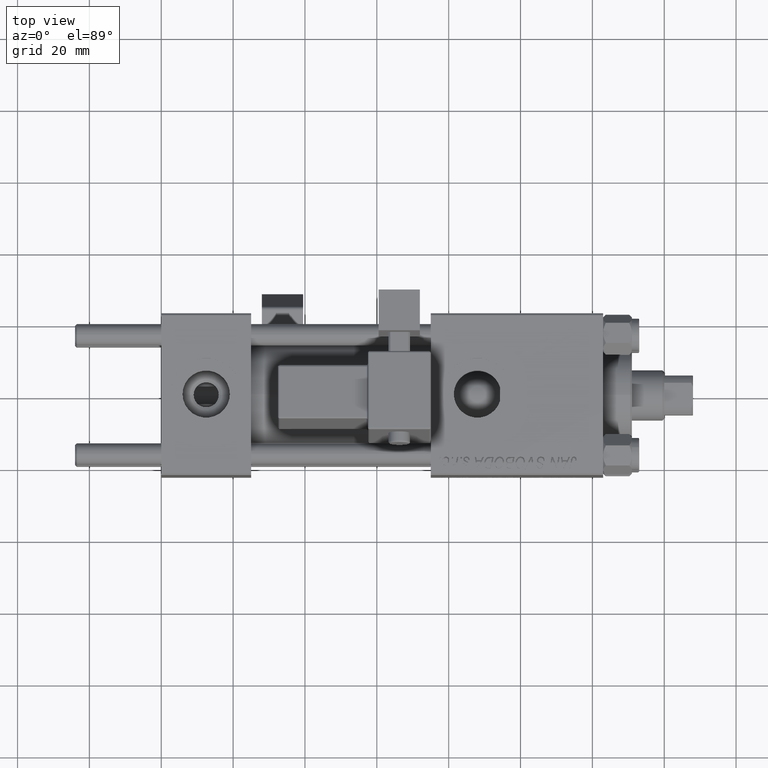
[diagram: clean part render]
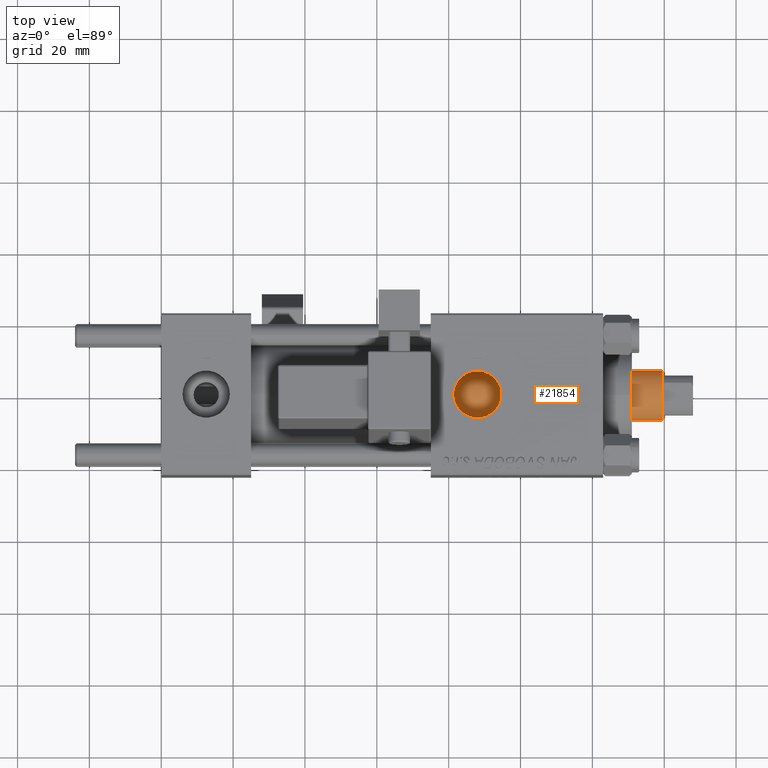
[diagram: same view with one face highlighted and labeled with its STEP entity id]
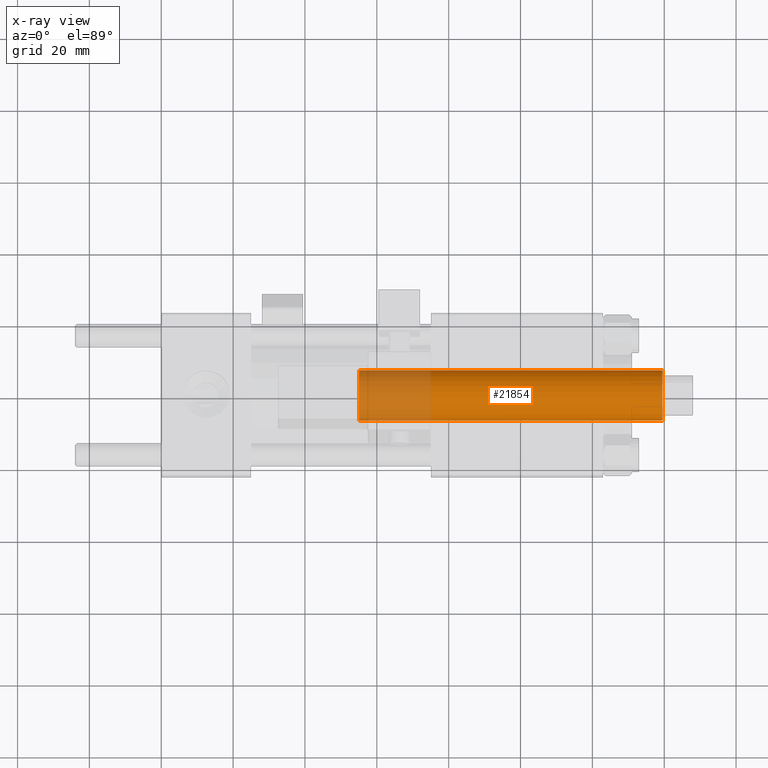
[diagram: x-ray of the same camera — body ghosted, the highlighted face saturated]
A machine part, top view. The second image highlights one B-rep face of the part: STEP entity #21854.
The next image is the same camera in x-ray: the body ghosted, the highlighted face saturated — about 25% of this face is hidden behind the body in this view.
In plain terms, the highlighted cylindrical surface (edge-blend (fillet) strip) has radius 7 mm, axis along (-1, 0, 0).
Its self-contained STEP definition (entity closure, byte-faithful):
#433 = CIRCLE ( 'NONE', #41806, 7.000000000000000000 ) ;
#2949 = DIRECTION ( 'NONE',  ( 0.000000000000000000, 0.000000000000000000, 1.000000000000000000 ) ) ;
#3571 = CARTESIAN_POINT ( 'NONE',  ( 0.000000000000000000, 0.000000000000000000, 30.00000000000000000 ) ) ;
#4063 = EDGE_CURVE ( 'NONE', #8750, #19957, #433, .T. ) ;
#4565 = CARTESIAN_POINT ( 'NONE',  ( 7.000000000000000000, 8.572527594031473190E-16, 114.4999999999999858 ) ) ;
#5091 = DIRECTION ( 'NONE',  ( -0.000000000000000000, -0.000000000000000000, -1.000000000000000000 ) ) ;
#5949 = CYLINDRICAL_SURFACE ( 'NONE', #30717, 7.000000000000000000 ) ;
#6980 = ORIENTED_EDGE ( 'NONE', *, *, #30055, .F. ) ;
#7354 = CARTESIAN_POINT ( 'NONE',  ( 0.000000000000000000, 0.000000000000000000, 114.4999999999999858 ) ) ;
#8230 = VECTOR ( 'NONE', #15314, 1000.000000000000000 ) ;
#8644 = EDGE_CURVE ( 'NONE', #19957, #36635, #25724, .T. ) ;
#8750 = VERTEX_POINT ( 'NONE', #4565 ) ;
#13882 = AXIS2_PLACEMENT_3D ( 'NONE', #3571, #2949, #39700 ) ;
#15314 = DIRECTION ( 'NONE',  ( -0.000000000000000000, -0.000000000000000000, -1.000000000000000000 ) ) ;
#17400 = ORIENTED_EDGE ( 'NONE', *, *, #8644, .T. ) ;
#18939 = EDGE_CURVE ( 'NONE', #36635, #29887, #34940, .T. ) ;
#19025 = LINE ( 'NONE', #51264, #8230 ) ;
#19957 = VERTEX_POINT ( 'NONE', #42413 ) ;
#21854 = ADVANCED_FACE ( 'NONE', ( #22617 ), #5949, .T. ) ;
#22617 = FACE_OUTER_BOUND ( 'NONE', #42969, .T. ) ;
#23768 = DIRECTION ( 'NONE',  ( 0.000000000000000000, 0.000000000000000000, -1.000000000000000000 ) ) ;
#25724 = LINE ( 'NONE', #36554, #44529 ) ;
#29887 = VERTEX_POINT ( 'NONE', #45726 ) ;
#30055 = EDGE_CURVE ( 'NONE', #8750, #29887, #19025, .T. ) ;
#30717 = AXIS2_PLACEMENT_3D ( 'NONE', #47195, #38187, #46929 ) ;
#34940 = CIRCLE ( 'NONE', #13882, 7.000000000000000000 ) ;
#36554 = CARTESIAN_POINT ( 'NONE',  ( -7.000000000000000000, 0.000000000000000000, 115.0000000000000000 ) ) ;
#36635 = VERTEX_POINT ( 'NONE', #50255 ) ;
#38187 = DIRECTION ( 'NONE',  ( -0.000000000000000000, -0.000000000000000000, -1.000000000000000000 ) ) ;
#39344 = DIRECTION ( 'NONE',  ( 1.000000000000000000, 0.000000000000000000, 0.000000000000000000 ) ) ;
#39700 = DIRECTION ( 'NONE',  ( 1.000000000000000000, 0.000000000000000000, 0.000000000000000000 ) ) ;
#40611 = ORIENTED_EDGE ( 'NONE', *, *, #18939, .T. ) ;
#41806 = AXIS2_PLACEMENT_3D ( 'NONE', #7354, #23768, #39344 ) ;
#42413 = CARTESIAN_POINT ( 'NONE',  ( -7.000000000000000000, 0.000000000000000000, 114.4999999999999858 ) ) ;
#42969 = EDGE_LOOP ( 'NONE', ( #6980, #48809, #17400, #40611 ) ) ;
#44529 = VECTOR ( 'NONE', #5091, 1000.000000000000000 ) ;
#45726 = CARTESIAN_POINT ( 'NONE',  ( 7.000000000000000000, 8.572527594031473190E-16, 30.00000000000000000 ) ) ;
#46929 = DIRECTION ( 'NONE',  ( -1.000000000000000000, 0.000000000000000000, 0.000000000000000000 ) ) ;
#47195 = CARTESIAN_POINT ( 'NONE',  ( 0.000000000000000000, 0.000000000000000000, 115.0000000000000000 ) ) ;
#48809 = ORIENTED_EDGE ( 'NONE', *, *, #4063, .T. ) ;
#50255 = CARTESIAN_POINT ( 'NONE',  ( -7.000000000000000000, 0.000000000000000000, 30.00000000000000000 ) ) ;
#51264 = CARTESIAN_POINT ( 'NONE',  ( 7.000000000000000000, 8.572527594031473190E-16, 115.0000000000000000 ) ) ;